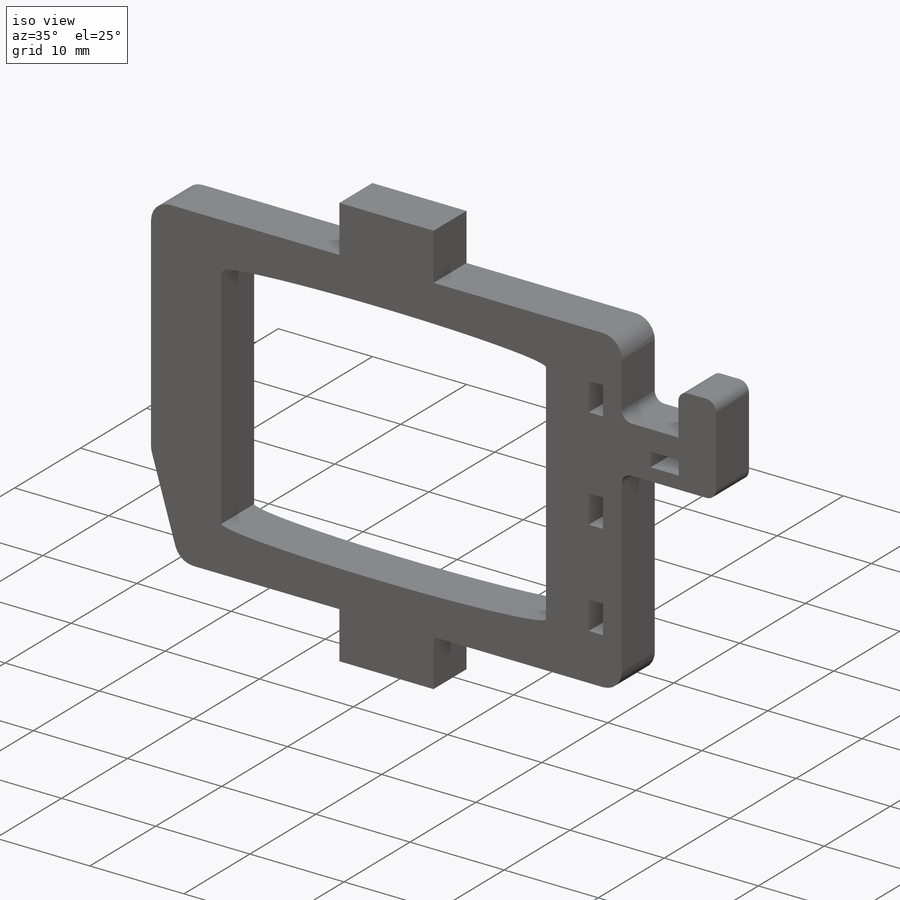
[diagram: iso view]
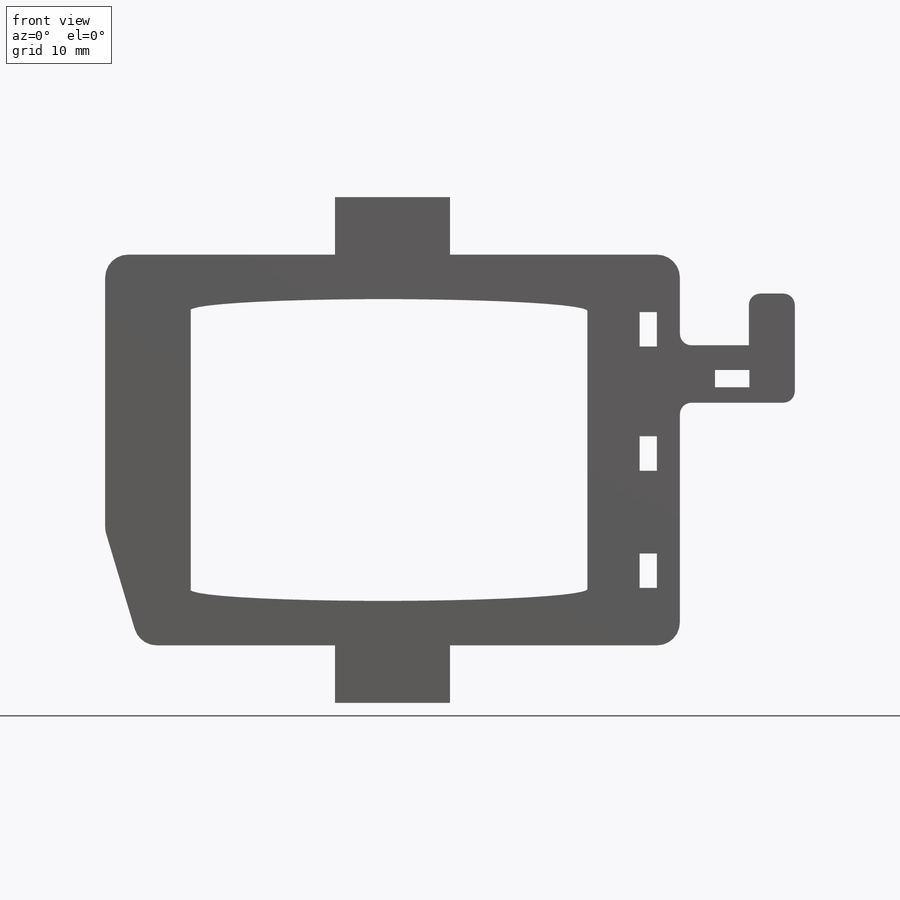
[diagram: front view]
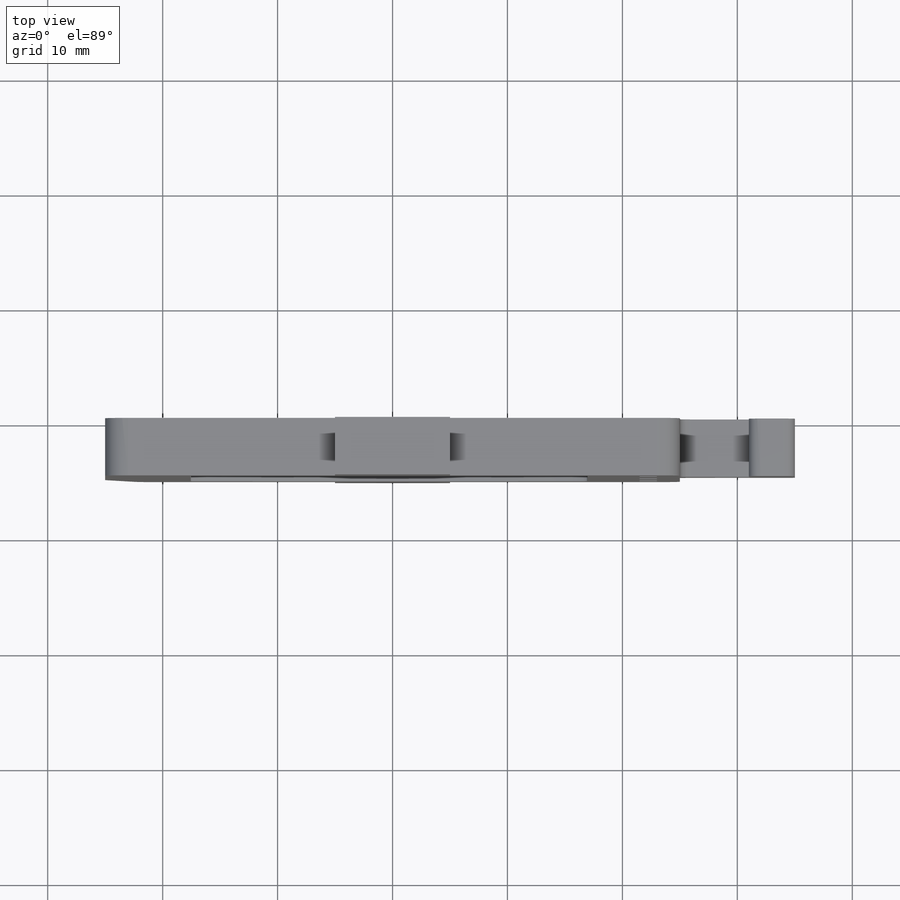
[diagram: top view]
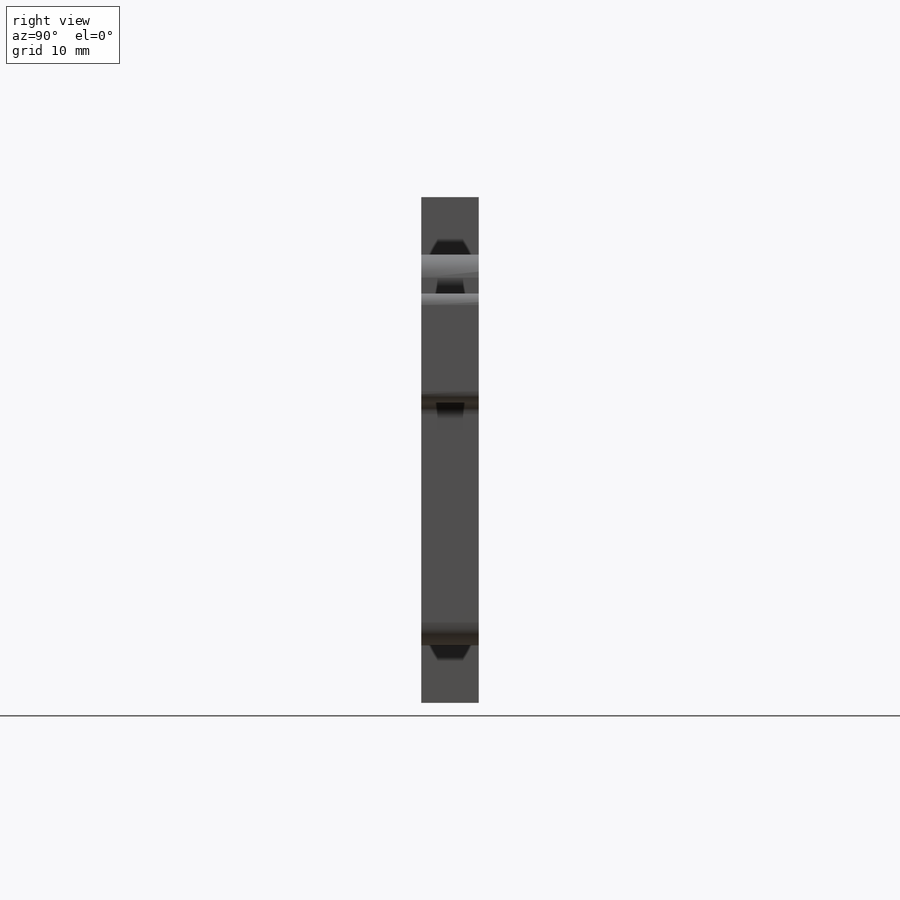
[diagram: right view]
SOLIDWORKS PART (.sldprt)
format: sldprt  version: not decoded by parser v0  size: 340,992 bytes
history: native  units: mm
features: sketch x7, extrude x5, cut_extrude x4, plane x3, fillet x3, material x1 (+9 scaffold rows collapsed)
feature tree (32):
  scaffold x9  (default folders/planes/origin — collapsed)
  material  "Acrílico (médio-alto impacto)"
  plane  "Plano frontal"
  plane  "Plano superior"
  plane  "Plano direito"
  sketch  "Esboço1"  dims[c1.D1=34.0mm c1.D2=40.0mm c1.D3=5.0mm c1.D4=10.0mm c2.D2=50.0mm]
  extrude  "Ressalto-extrusão1"  Depth=5mm
  sketch  "Esboço2"  dims[c1.D1=34.5mm c1.D2=24.2mm c1.D3=1.0mm c1.D4=24.2mm c1.D5=34.5mm c2.D1=34.5mm]
  cut_extrude  "Corte-extrusão1"  [1 undecoded]
  fillet  "Filete1"  Radius=2mm
  sketch  "Esboço3"  dims[D1=3.0mm D2=10.0mm]
  cut_extrude  "Corte-extrusão2"  [1 undecoded]
  extrude  "Filete2"  Depth=2mm
  sketch  "Esboço4"  dims[D1=1.5mm D2=3.0mm]
  fillet  "Bloco1-2"  [1 undecoded]
  fillet  "Bloco1-3"  Radius=1.5mm
  cut_extrude  "Corte-extrusão3"  [1 undecoded]
  sketch  "Esboço5"  dims[D1=5.0mm D2=5.0mm]
  extrude  "Ressalto-extrusão2"  Depth=10mm
  sketch  "Esboço6"  dims[D1=4.0mm]
  extrude  "Ressalto-extrusão3"  Depth=4.5mm
  sketch  "Esboço7"  dims[D1=3.0mm D2=1.5mm]
  cut_extrude  "Corte-extrusão4"  [1 undecoded]
  extrude  "Filete3"  Depth=1mm
decode coverage: 14 of 19 modeling features carry decoded parameters
note: 5 parameter values undecoded
summary: no parameter record found for 5 features
note: suppression state not decoded; provenance and decode notes live in map.json
